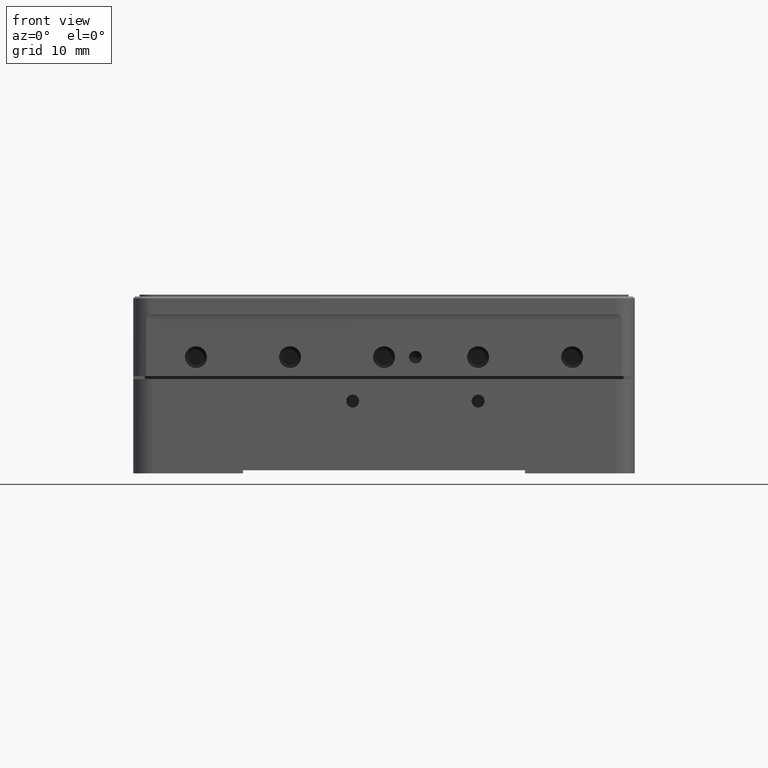
[diagram: clean part render]
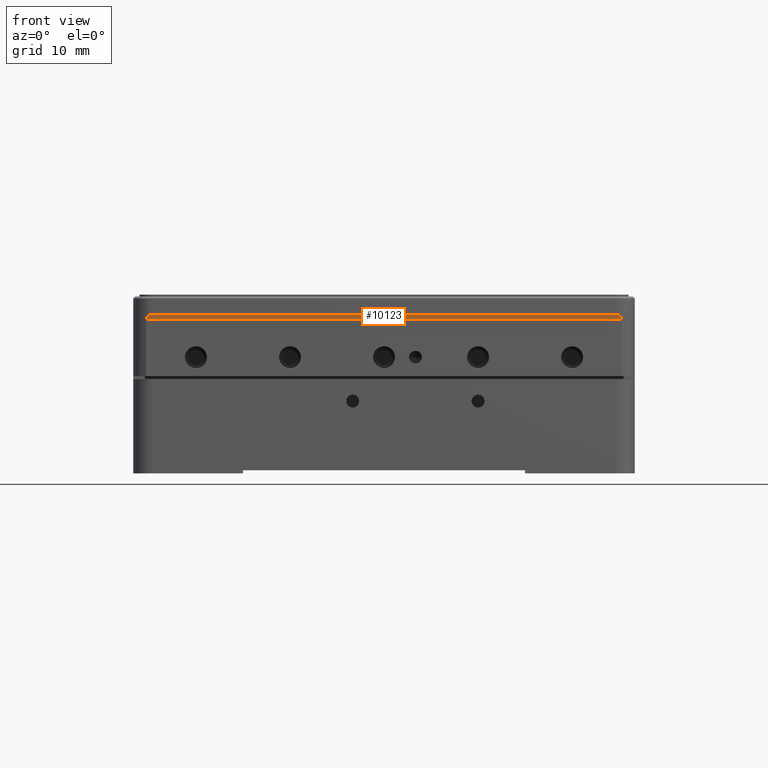
[diagram: same view with one face highlighted and labeled with its STEP entity id]
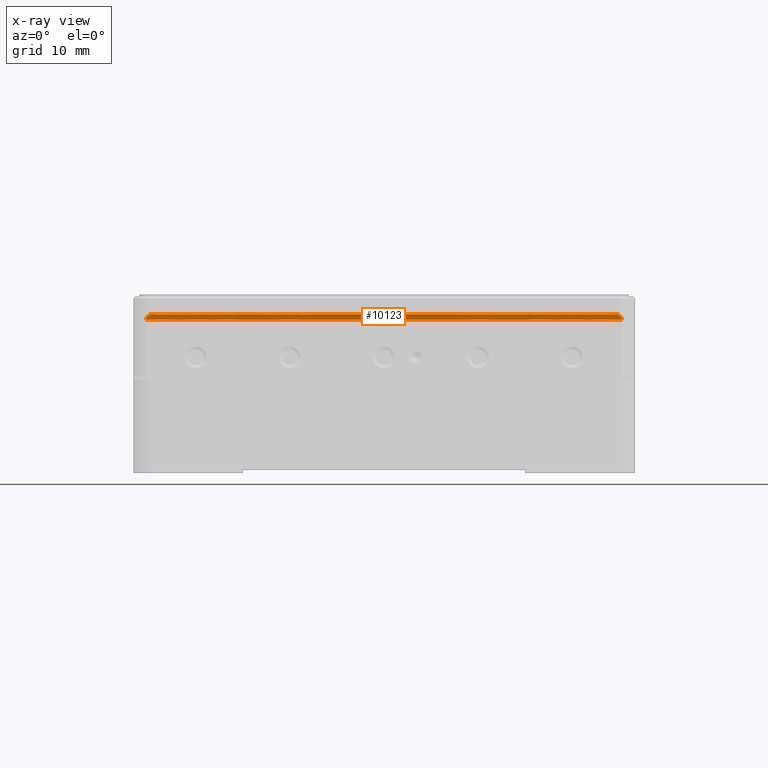
[diagram: x-ray of the same camera — body ghosted, the highlighted face saturated]
A machine part, front view. The second image highlights one B-rep face of the part: STEP entity #10123.
The next image is the same camera in x-ray: the body ghosted, the highlighted face saturated — about 0% of this face is hidden behind the body in this view.
In plain terms, the highlighted cylindrical surface (edge-blend (fillet) strip) has radius 2.5 mm, axis along (1, 0, 0).
Its self-contained STEP definition (entity closure, byte-faithful):
#590 = CARTESIAN_POINT ( 'NONE',  ( 37.40544421631552297, -39.97303761761281038, 10.27491863970676711 ) ) ;
#1340 = DIRECTION ( 'NONE',  ( 1.000000000000000000, 0.000000000000000000, 0.000000000000000000 ) ) ;
#2214 = CARTESIAN_POINT ( 'NONE',  ( -37.60787526411782267, -39.93810907382985675, 10.15902462060113187 ) ) ;
#2504 = CARTESIAN_POINT ( 'NONE',  ( -37.45978720678422036, -39.96499980145620157, 10.25028354465236369 ) ) ;
#3425 = ORIENTED_EDGE ( 'NONE', *, *, #8773, .F. ) ;
#3679 = CARTESIAN_POINT ( 'NONE',  ( 37.93674969975985078, -39.84999999999999432, 9.500000000000000000 ) ) ;
#3958 = CARTESIAN_POINT ( 'NONE',  ( 37.62832175364912501, -39.93355675403414295, 10.14125921519152662 ) ) ;
#4603 = DIRECTION ( 'NONE',  ( 1.000000000000000000, 0.000000000000000000, 0.000000000000000000 ) ) ;
#5001 = CARTESIAN_POINT ( 'NONE',  ( 37.06035737505917638, -39.99999999198054468, 10.35293610546080245 ) ) ;
#5880 = CARTESIAN_POINT ( 'NONE',  ( 37.69659125620637496, -39.91837873532012537, 10.08213356238375091 ) ) ;
#6772 = CARTESIAN_POINT ( 'NONE',  ( -37.73590474399102135, -39.90841412537994870, 10.03793254708553739 ) ) ;
#7856 = CARTESIAN_POINT ( 'NONE',  ( 37.00000039859985179, -40.00000000000000000, 10.35293610546080068 ) ) ;
#7951 = DIRECTION ( 'NONE',  ( 0.000000000000000000, 0.000000000000000000, -1.000000000000000000 ) ) ;
#8472 = EDGE_CURVE ( 'NONE', #26764, #21721, #27230, .T. ) ;
#8773 = EDGE_CURVE ( 'NONE', #26764, #9422, #12859, .T. ) ;
#8973 = CARTESIAN_POINT ( 'NONE',  ( -37.12085880997243947, -39.99999999598541933, 10.35293608334000126 ) ) ;
#9422 = VERTEX_POINT ( 'NONE', #25369 ) ;
#9551 = CARTESIAN_POINT ( 'NONE',  ( 37.45938574414123678, -39.96506163602884243, 10.25048085552212740 ) ) ;
#10123 = ADVANCED_FACE ( 'NONE', ( #16481 ), #28092, .F. ) ;
#10323 = ORIENTED_EDGE ( 'NONE', *, *, #28288, .F. ) ;
#10885 = CARTESIAN_POINT ( 'NONE',  ( -37.88589002431365316, -39.86633152315590678, 9.790274408886311619 ) ) ;
#11888 = CARTESIAN_POINT ( 'NONE',  ( 37.55951875082268998, -39.94745894213453852, 10.19158344819743078 ) ) ;
#12187 = CARTESIAN_POINT ( 'NONE',  ( 37.00000039859985179, -40.00000000000000000, 10.35293610546080068 ) ) ;
#12629 = CARTESIAN_POINT ( 'NONE',  ( 37.93667645069476180, -39.85002407580339678, 9.620246174569999198 ) ) ;
#12859 = B_SPLINE_CURVE_WITH_KNOTS ( 'NONE', 3,
 ( #13368, #17633, #17790, #26608, #10885, #13519, #13239, #22480, #6772, #26907, #19850, #2214, #13805, #2504, #27042, #24548, #8973, #26771 ),
 .UNSPECIFIED., .F., .F.,
 ( 4, 2, 2, 2, 2, 2, 2, 2, 4 ),
 ( 0.000000000000000000, 0.1250000000000052736, 0.2500000000000105471, 0.3750000000000158207, 0.4375000000000199285, 0.5000000000000239808, 0.6250000000000210942, 0.7500000000000183187, 1.000000000000000000 ),
 .UNSPECIFIED. ) ;
#13239 = CARTESIAN_POINT ( 'NONE',  ( -37.80707680811791960, -39.88962518838340543, 9.946179397939038935 ) ) ;
#13368 = CARTESIAN_POINT ( 'NONE',  ( -37.93674969975985078, -39.84999999999999432, 9.500000000000000000 ) ) ;
#13519 = CARTESIAN_POINT ( 'NONE',  ( -37.83676430476558039, -39.88105588874738316, 9.896477767830983652 ) ) ;
#13539 = ORIENTED_EDGE ( 'NONE', *, *, #27738, .F. ) ;
#13805 = CARTESIAN_POINT ( 'NONE',  ( -37.56082294751374917, -39.94755928179564108, 10.19241202452329276 ) ) ;
#13815 = CARTESIAN_POINT ( 'NONE',  ( 37.23568272606472362, -39.99129303903163191, 10.32875534203736478 ) ) ;
#14121 = CARTESIAN_POINT ( 'NONE',  ( 37.53513080837884530, -39.95199787597591268, 10.20714295327488941 ) ) ;
#14832 = CARTESIAN_POINT ( 'NONE',  ( 37.80664817465203953, -39.88974502964494206, 9.946825648819430654 ) ) ;
#16481 = FACE_OUTER_BOUND ( 'NONE', #21799, .T. ) ;
#17633 = CARTESIAN_POINT ( 'NONE',  ( -37.93671350620483196, -39.85001189624620821, 9.559964551692484491 ) ) ;
#17790 = CARTESIAN_POINT ( 'NONE',  ( -37.93044317944864474, -39.85209556459840030, 9.618561501568610339 ) ) ;
#18314 = ORIENTED_EDGE ( 'NONE', *, *, #8472, .T. ) ;
#18549 = VERTEX_POINT ( 'NONE', #7856 ) ;
#19850 = CARTESIAN_POINT ( 'NONE',  ( -37.67331159792273354, -39.92355106141737764, 10.10226604893145463 ) ) ;
#19858 = CARTESIAN_POINT ( 'NONE',  ( -37.93674969975985078, -39.84999999999999432, 9.500000000000000000 ) ) ;
#20353 = LINE ( 'NONE', #23399, #27413 ) ;
#20718 = CARTESIAN_POINT ( 'NONE',  ( 37.11960447923120654, -39.99817864065371964, 10.34809995277611350 ) ) ;
#20850 = CARTESIAN_POINT ( 'NONE',  ( 37.60658093614912190, -39.93813461502216455, 10.15823736271908118 ) ) ;
#21550 = VECTOR ( 'NONE', #4603, 1000.000000000000000 ) ;
#21578 = AXIS2_PLACEMENT_3D ( 'NONE', #25572, #1340, #7951 ) ;
#21721 = VERTEX_POINT ( 'NONE', #25162 ) ;
#21799 = EDGE_LOOP ( 'NONE', ( #18314, #10323, #13539, #3425 ) ) ;
#22480 = CARTESIAN_POINT ( 'NONE',  ( -37.75468104905295519, -39.90358109755621285, 10.01563176905471586 ) ) ;
#22770 = CARTESIAN_POINT ( 'NONE',  ( 37.29067905713933584, -39.98644326482607170, 10.31488590678233308 ) ) ;
#23399 = CARTESIAN_POINT ( 'NONE',  ( -40.00000000000000000, -40.00000000000000000, 10.35293610545999954 ) ) ;
#23795 = CARTESIAN_POINT ( 'NONE',  ( 37.91162835200234582, -39.85862354609897551, 9.734950239219152479 ) ) ;
#24548 = CARTESIAN_POINT ( 'NONE',  ( -37.23720891762334873, -39.99270014635796144, 10.33355742592254956 ) ) ;
#24723 = CARTESIAN_POINT ( 'NONE',  ( 40.00000000000000000, -39.84999999999999432, 9.500000000000000000 ) ) ;
#25121 = B_SPLINE_CURVE_WITH_KNOTS ( 'NONE', 3,
 ( #12187, #5001, #20718, #13815, #22770, #590, #9551, #14121, #11888, #20850, #3958, #5880, #28226, #14832, #28517, #23795, #12629, #3679 ),
 .UNSPECIFIED., .F., .F.,
 ( 4, 2, 2, 2, 2, 2, 2, 2, 4 ),
 ( 0.000000000000000000, 0.1249999999999870937, 0.2499999999999741873, 0.3749999999999612532, 0.4374999999999622524, 0.4999999999999632516, 0.6249999999999734657, 0.7499999999999835687, 1.000000000000000000 ),
 .UNSPECIFIED. ) ;
#25162 = CARTESIAN_POINT ( 'NONE',  ( 37.93674969975985078, -39.84999999999999432, 9.500000000000000000 ) ) ;
#25369 = CARTESIAN_POINT ( 'NONE',  ( -37.00000009965130232, -40.00000000000000000, 10.35293610546090015 ) ) ;
#25572 = CARTESIAN_POINT ( 'NONE',  ( 40.00000000000000000, -42.35000000000000142, 9.500000000000000000 ) ) ;
#26608 = CARTESIAN_POINT ( 'NONE',  ( -37.90535403332753361, -39.86015868338139256, 9.733020197688157182 ) ) ;
#26764 = VERTEX_POINT ( 'NONE', #19858 ) ;
#26771 = CARTESIAN_POINT ( 'NONE',  ( -37.00000009965130232, -40.00000000000000000, 10.35293610546090015 ) ) ;
#26907 = CARTESIAN_POINT ( 'NONE',  ( -37.69569920450457801, -39.91829250312400035, 10.08083407846504898 ) ) ;
#27042 = CARTESIAN_POINT ( 'NONE',  ( -37.40392765026746957, -39.97320921102134861, 10.27542148685155254 ) ) ;
#27230 = LINE ( 'NONE', #24723, #21550 ) ;
#27413 = VECTOR ( 'NONE', #27819, 1000.000000000000000 ) ;
#27738 = EDGE_CURVE ( 'NONE', #9422, #18549, #20353, .T. ) ;
#27819 = DIRECTION ( 'NONE',  ( 1.000000000000000000, 0.000000000000000000, 0.000000000000000000 ) ) ;
#28092 = CYLINDRICAL_SURFACE ( 'NONE', #21578, 2.500000000000000444 ) ;
#28226 = CARTESIAN_POINT ( 'NONE',  ( 37.73675998923521036, -39.90834872948366296, 10.03930513892214904 ) ) ;
#28288 = EDGE_CURVE ( 'NONE', #18549, #21721, #25121, .T. ) ;
#28517 = CARTESIAN_POINT ( 'NONE',  ( 37.83566508061988287, -39.88138206086141935, 9.898693171311602867 ) ) ;